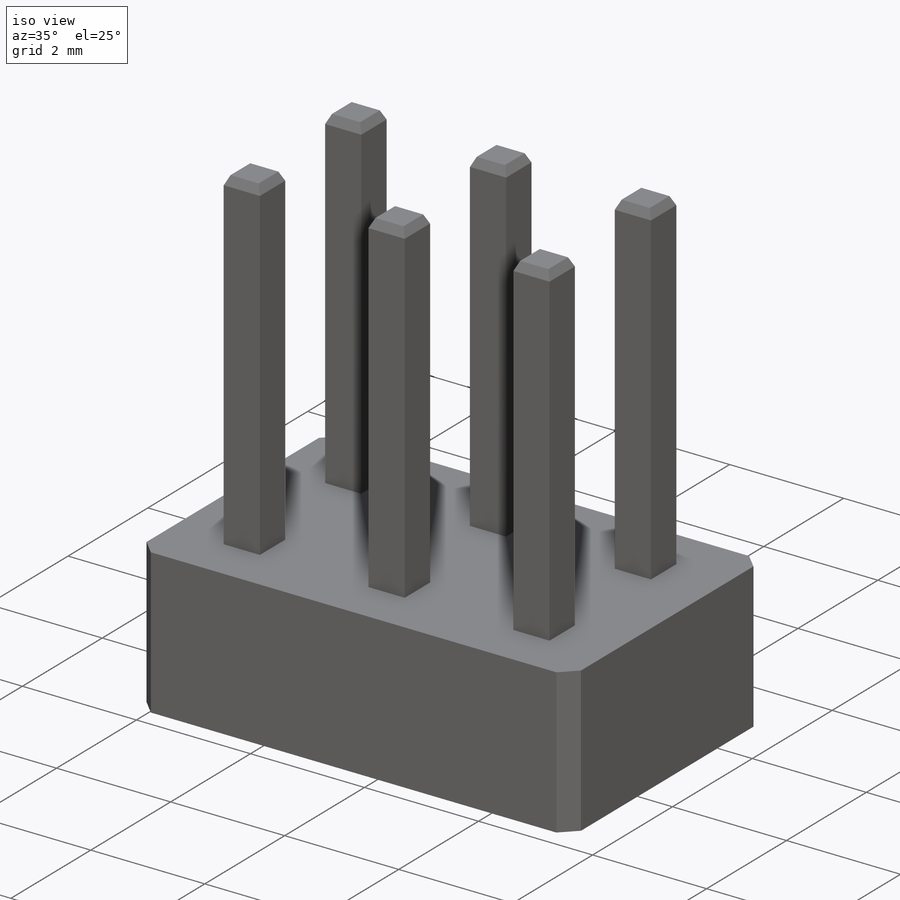
[diagram: iso view]
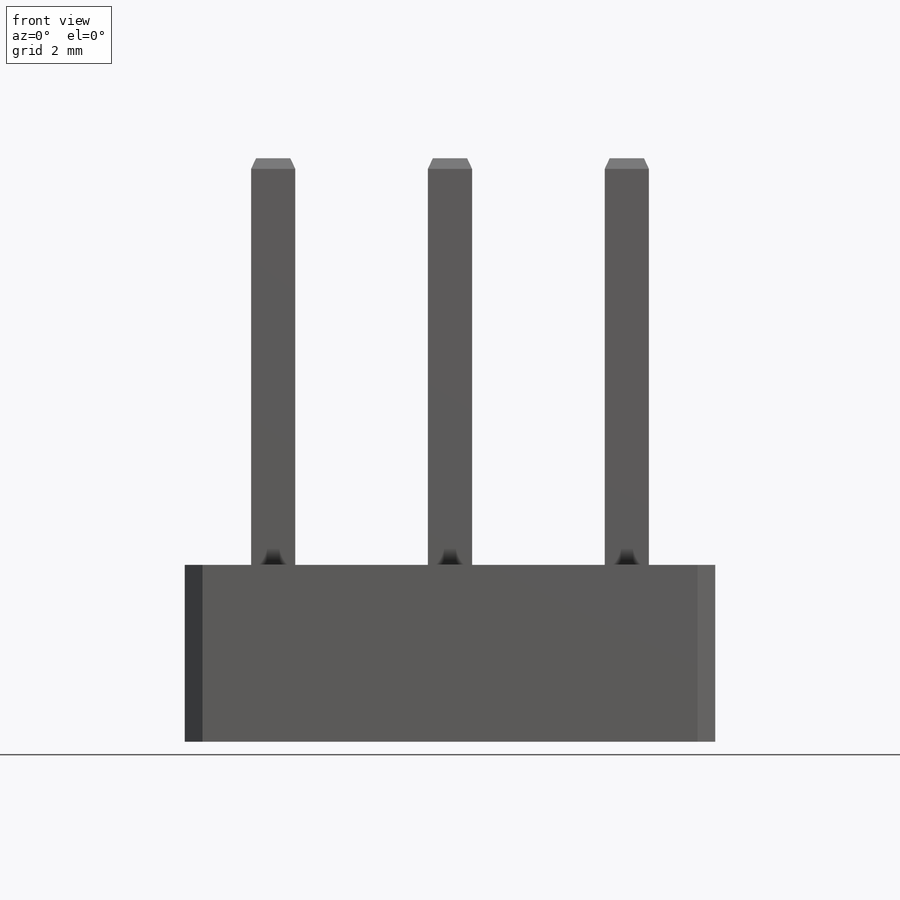
[diagram: front view]
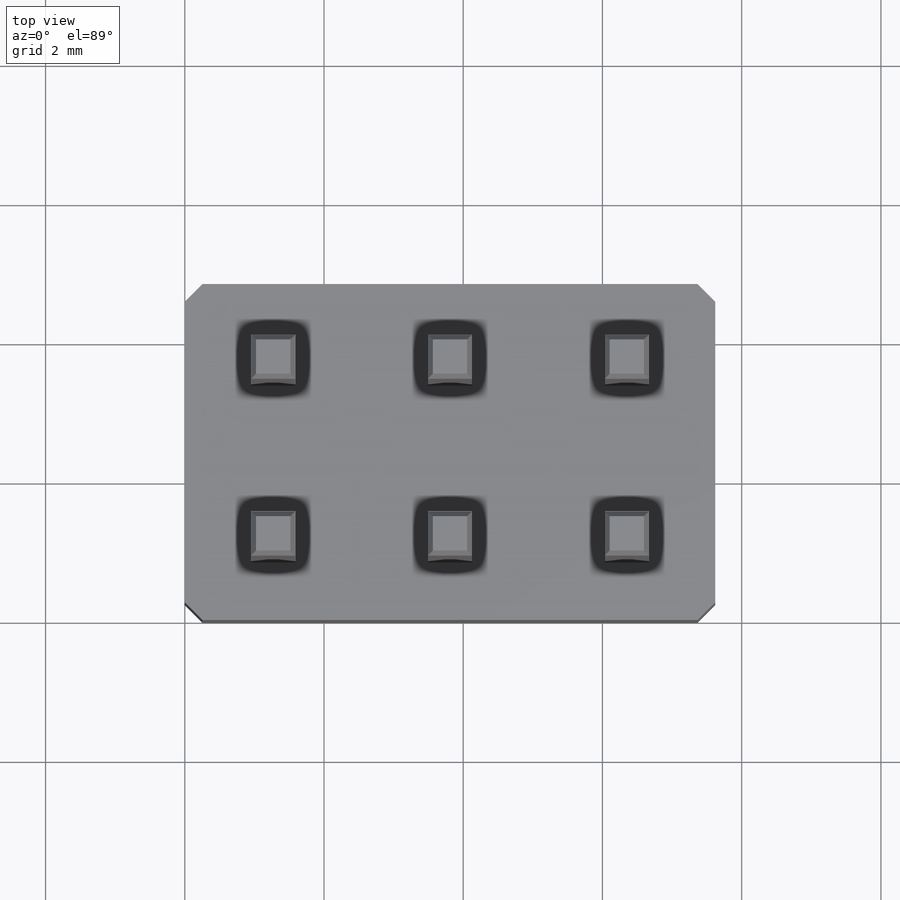
[diagram: top view]
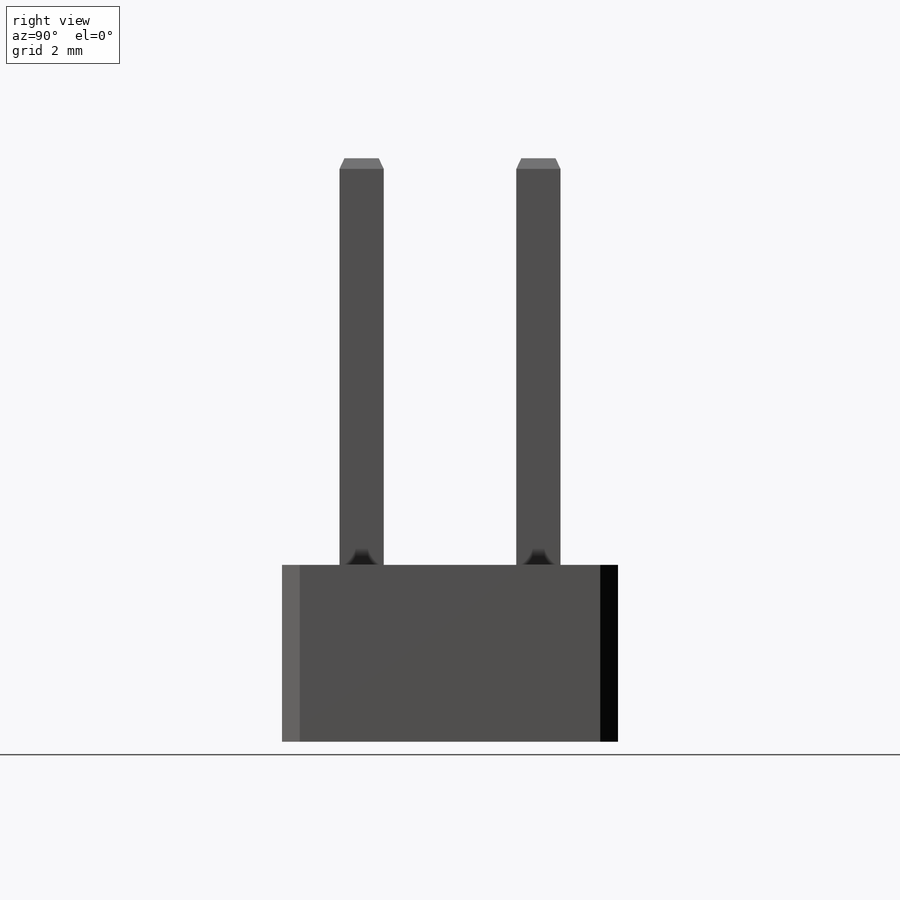
[diagram: right view]
SOLIDWORKS PART (.sldprt)
format: sldprt  version: not decoded by parser v0  size: 287,744 bytes
history: native  units: mm
features: sketch x2, extrude x2, chamfer x2, material x1, pattern_linear x1 (+12 scaffold rows collapsed)
feature tree (20):
  scaffold x12  (default folders/planes/origin — collapsed)
  material  "ABS PC"
  sketch  "Sketch1"  dims[D1=7.62mm D2=4.826mm]
  extrude  "Boss-Extrude1"  Depth=2.54mm
  sketch  "Sketch2"  dims[D1=0.635mm D2=0.635mm D3=1.143mm D4=1.27mm]
  extrude  "Boss-Extrude2"  Depth=5.842mm
  chamfer  "Chamfer2"  Distance=0.1524mm Angle=25deg
  chamfer  "Chamfer1"  Distance=0.254mm Angle=45deg
  pattern_linear  "LPattern2"  Count1=3 Count2=2 Spacing1=2.54mm Spacing2=2.54mm
decode coverage: 7 of 7 modeling features carry decoded parameters
note: suppression state not decoded; provenance and decode notes live in map.json
